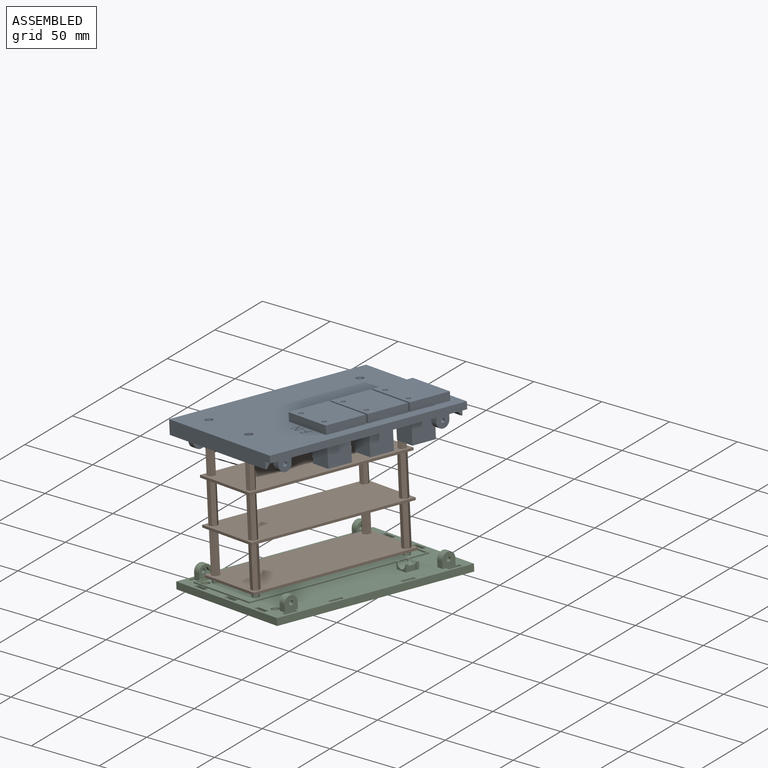
[diagram: assembled view]
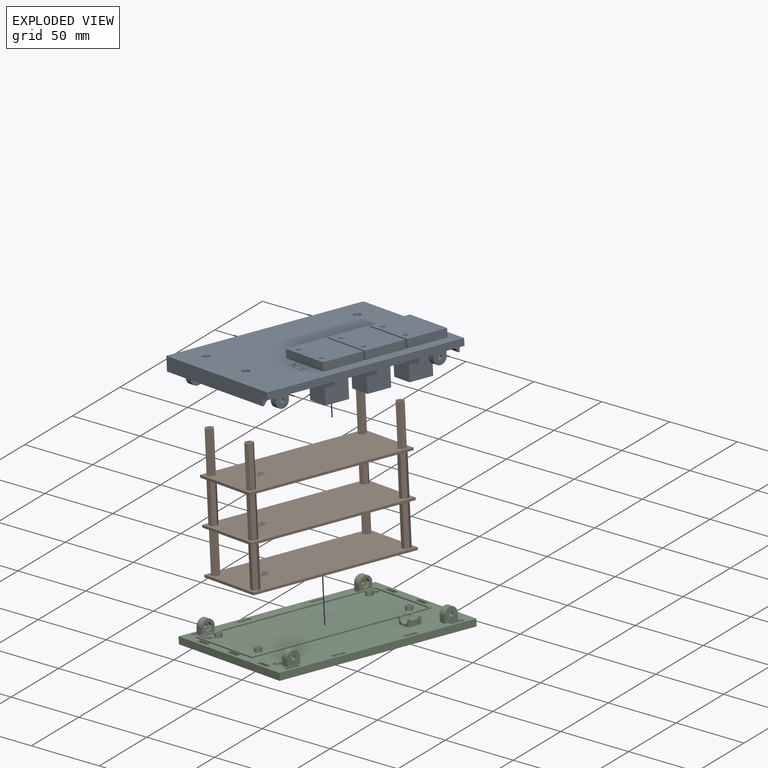
[diagram: exploded view]
GUIDED TOUR — MATED ASSEMBLY WITH SUBASSEMBLIES (Onshape document c2169f54061de33ea93a90dd, AutoMate assembly c2169f54061de33ea93a90dd_6a7d9849bef87e64bdcc8d37_39b3068de8c0a42f99096cc5_default)

This assembly has 20 component occurrences arranged in 3 top-level units: 1 individual components plus 2 subassemblies (S0, S1). The tour has two levels: first the top level, where each subassembly is treated as one rigid unit; then each subassembly is toured internally in its own section (nesting deeper than one subassembly level is flattened into its subassembly's section).

Components are labeled P0..P19 across the whole record; subassembly units are labeled S0..S1. A mate is a constraint between two units; its type names the relative motion it leaves free:
  CYLINDRICAL — leaves both rotation about and translation along the listed axis free,
  PLANAR — leaves sliding in the plane through the listed point (normal = the listed direction) and rotation about that normal free,
  SLIDER — leaves translation along the listed axis free.
Axis/direction vectors are unit vectors and 'through' points are millimeter coordinates, both in the assembly's world frame.

TOP-LEVEL MATES (between units; each subassembly's internal mates are listed in its own section)
  1. PLANAR "Planar 1": S1 <-> P5, direction (0.104, -0.076, -0.992) through (241.97, 163.51, 79.97) mm
  2. CYLINDRICAL "Cylindrical 1": S0 <-> S1, axis (0.104, -0.076, -0.992) through (194.66, 182.35, 169.48) mm
  3. PLANAR "Planar 2": S0 <-> S1, direction (0.104, -0.076, -0.992) through (197.55, 61.16, 179.07) mm
  4. SLIDER "Slider 1": S1 <-> P5, axis (0.104, -0.076, -0.992) through (207.41, 53.93, 84.76) mm

TOP-LEVEL ASSEMBLY ORDER
  1. P5 — the base component [order verified]
  2. S1 [order verified]
  3. S0 [order verified]
(S1 verified with a relaxed clearance tolerance: the source model stores slight part interference there.)
Order-tag legend:
  [order verified] — this step's position reverses a verified removal order: the component was checked to insert without passing through the ones already placed.

Of the 20 component occurrences, 20 carry the full construction recipe — the FeatureScript program that regenerates the part's solid from scratch; the rest are supplied as boundary geometry only. Each toured unit is shown spotlighted twice — assembled, then exploded with a leader line back to its socket (green = recipe-attached component, orange = geometry-only, blue = subassembly unit; the rest desaturated gray).
NOTE — document 2 of 3 of this assembly tour. The two overview renders and the header above are repeated from document 1; the component sections below continue where the previous document stopped.
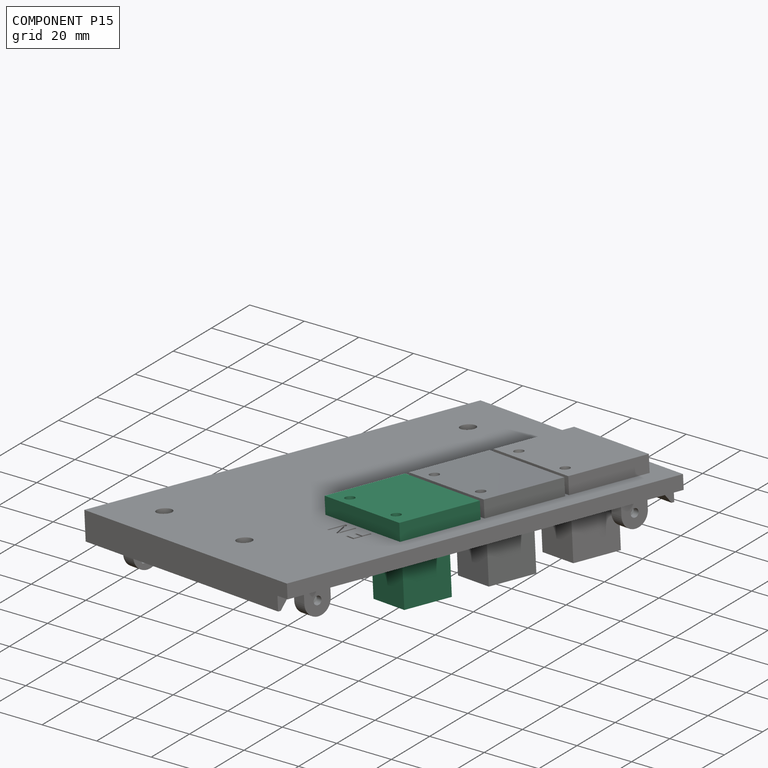
[diagram: component P15 — assembled]
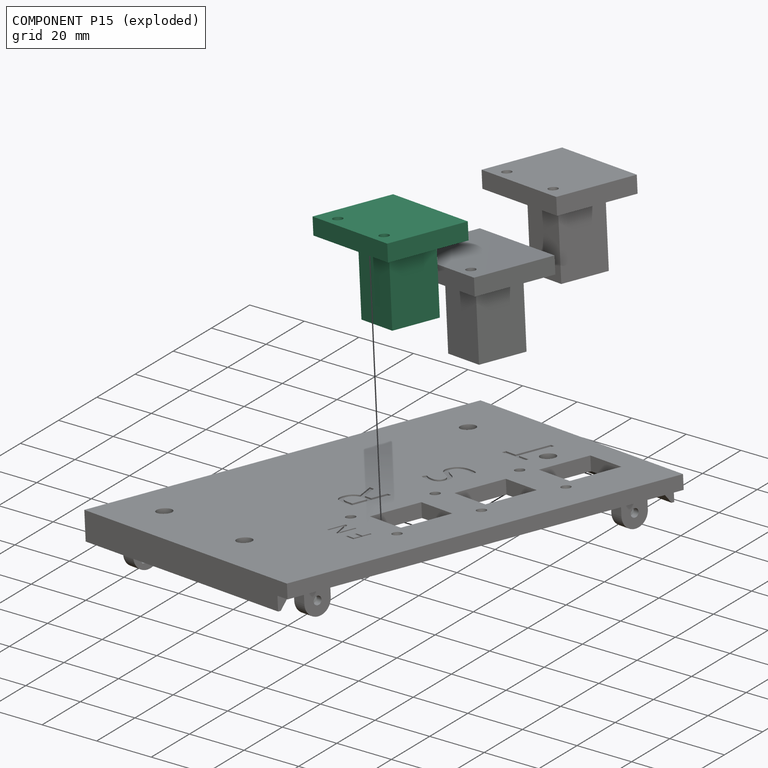
[diagram: component P15 — exploded]
COMPONENT P15 — same part as P2 (CADFS 00139065); its construction recipe is shown at P2.
Held by: PLANAR mate "Planar 3" to P0.
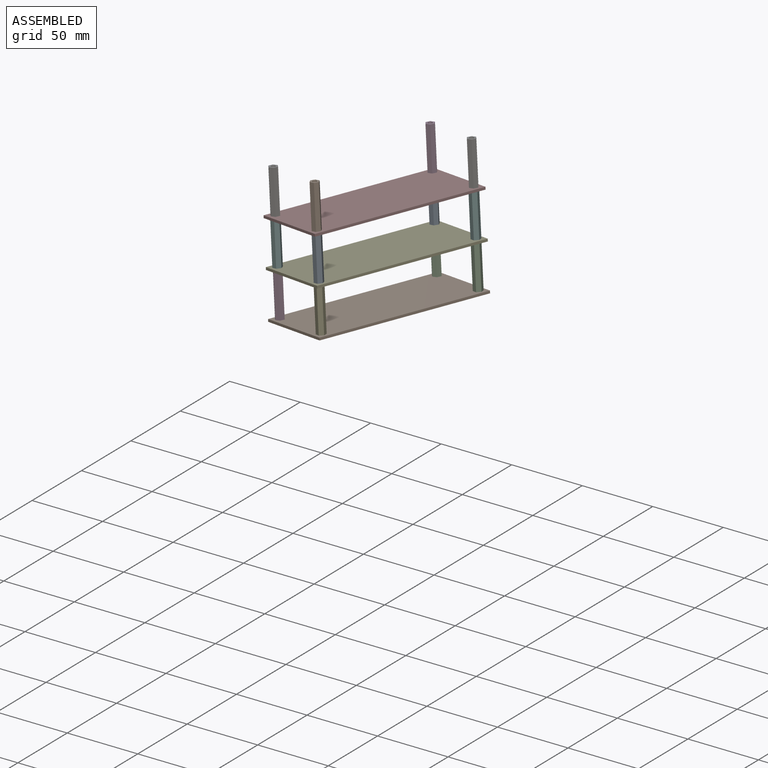
[diagram: subassembly S1 — assembled view]
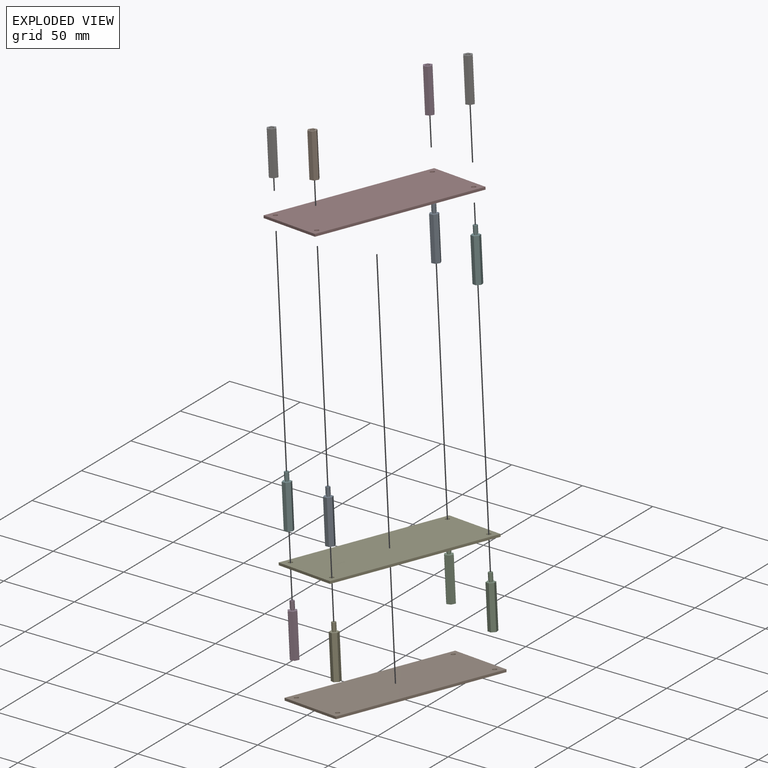
[diagram: subassembly S1 — exploded view]
SUBASSEMBLY S1 TOUR — 15 components, shown here in isolation at its own camera.

INTERNAL MATES
  1. PLANAR "Planar 9": P9 <-> P17, direction (0.104, -0.076, -0.992) through (166.49, 68.07, 113.08) mm
  2. PLANAR "Planar 5": P17 <-> P4, direction (0.104, -0.076, -0.992) through (238.69, 165.92, 111.41) mm
  3. PLANAR "Planar 14": P13 <-> P11, direction (0.104, -0.076, -0.992) through (200.66, 58.88, 149.32) mm
  4. PLANAR "Planar 6": P18 <-> P17, direction (0.104, -0.076, -0.992) through (238.51, 166.05, 113.09) mm
  5. PLANAR "Planar 2": P16 <-> P3, direction (0.104, -0.076, -0.992) through (169.78, 65.66, 81.65) mm
  6. PLANAR "Planar 13": P10 <-> P11, direction (0.104, -0.076, -0.992) through (163.21, 70.49, 144.52) mm
  7. PLANAR "Planar 8": P12 <-> P17, direction (0.104, -0.076, -0.992) through (203.94, 56.47, 117.89) mm
  8. PLANAR "Planar 10": P11 <-> P18, direction (0.104, -0.076, -0.992) through (235.40, 168.33, 142.84) mm
  9. PLANAR "Planar 3": P4 <-> P3, direction (0.104, -0.076, -0.992) through (241.80, 163.64, 81.66) mm
  10. PLANAR "Planar 4": P14 <-> P3, direction (0.104, -0.076, -0.992) through (204.34, 175.24, 76.85) mm
  11. PLANAR "Planar 7": P1 <-> P17, direction (0.104, -0.076, -0.992) through (201.06, 177.65, 108.29) mm
  12. PLANAR "Planar 1": P8 <-> P3, direction (0.104, -0.076, -0.992) through (207.23, 54.06, 86.45) mm
  13. PLANAR "Planar 12": P6 <-> P11, direction (0.104, -0.076, -0.992) through (197.77, 180.06, 139.73) mm
  14. PLANAR "Planar 11": P19 <-> P11, direction (0.104, -0.076, -0.992) through (235.22, 168.46, 144.53) mm

ASSEMBLY ORDER (within the subassembly)
  1. P11 — the base component [order heuristic]
  2. P6 — core [order heuristic]
  3. P13 — core [order heuristic]
  4. P18 — core [order heuristic]
  5. P19 — core [order heuristic]
  6. P17 — core [order heuristic]
  7. P1 — core [order heuristic]
  8. P4 — core [order heuristic]
  9. P12 — core [order heuristic]
  10. P8 — core [order heuristic]
  11. P14 — core [order heuristic]
  12. P16 [order verified]
  13. P9 [order verified]
  14. P10 [order verified]
  15. P3 [order verified]
(P9, P10, P16 verified with a relaxed clearance tolerance: the source model stores slight part interference there.)
Order-tag legend:
  [order verified] — this step's position reverses a verified removal order: the component was checked to insert without passing through the ones already placed.
  [order heuristic] — the first 11 components form the assembly's core: parts whose collision-free extraction could not be verified, listed in mate-graph order.
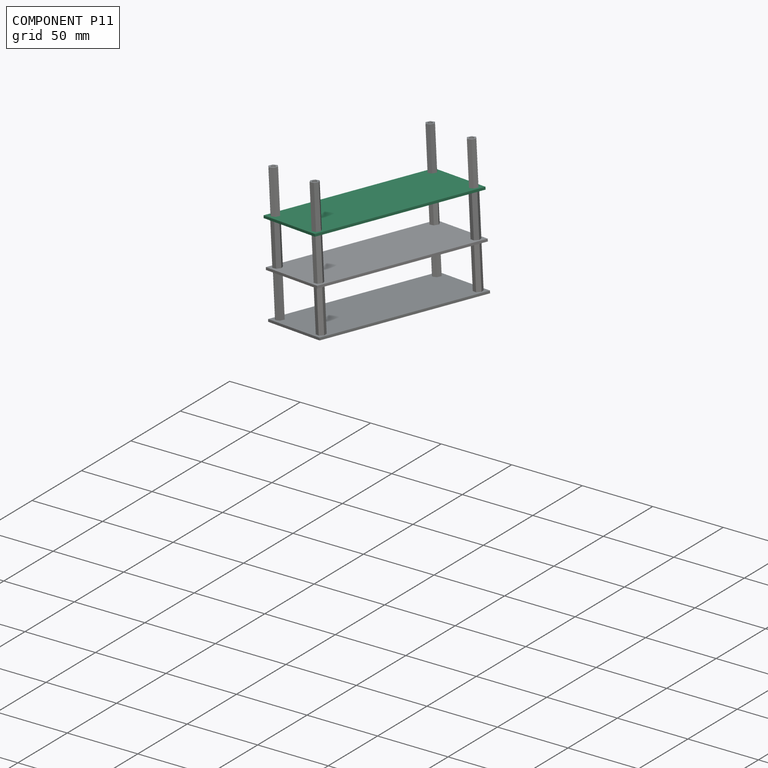
[diagram: component P11 — assembled]
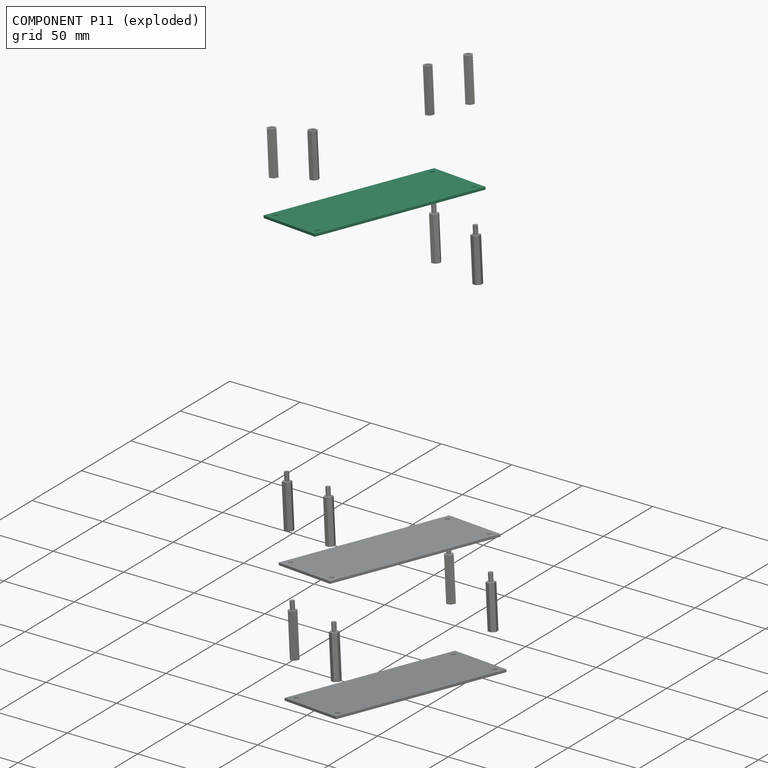
[diagram: component P11 — exploded]
COMPONENT P11 — same part as P3 (CADFS 00136846); its construction recipe is shown at P3.
Held by: PLANAR mate "Planar 14" to P13; PLANAR mate "Planar 13" to P10; PLANAR mate "Planar 10" to P18; PLANAR mate "Planar 12" to P6; PLANAR mate "Planar 11" to P19.
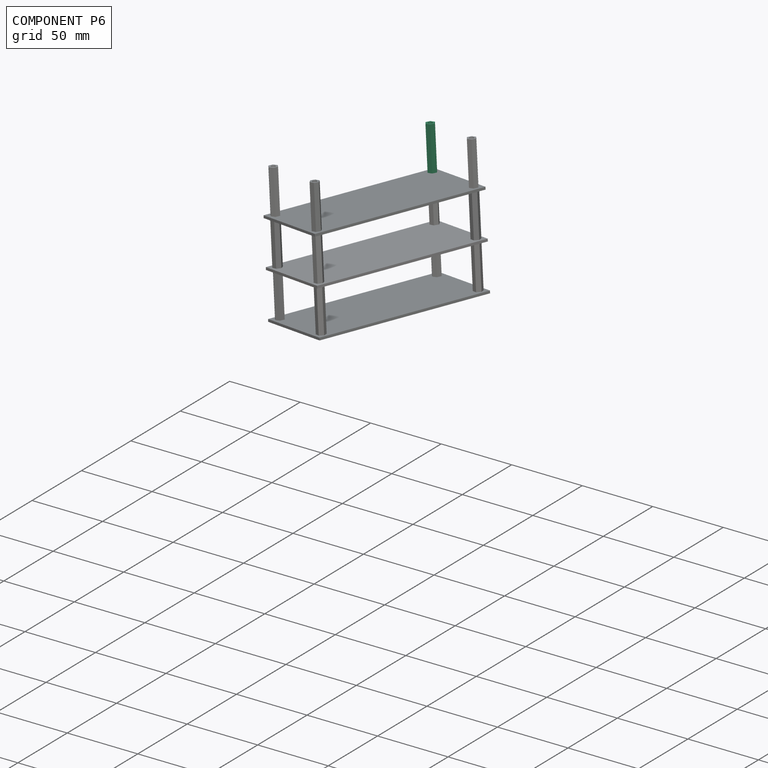
[diagram: component P6 — assembled]
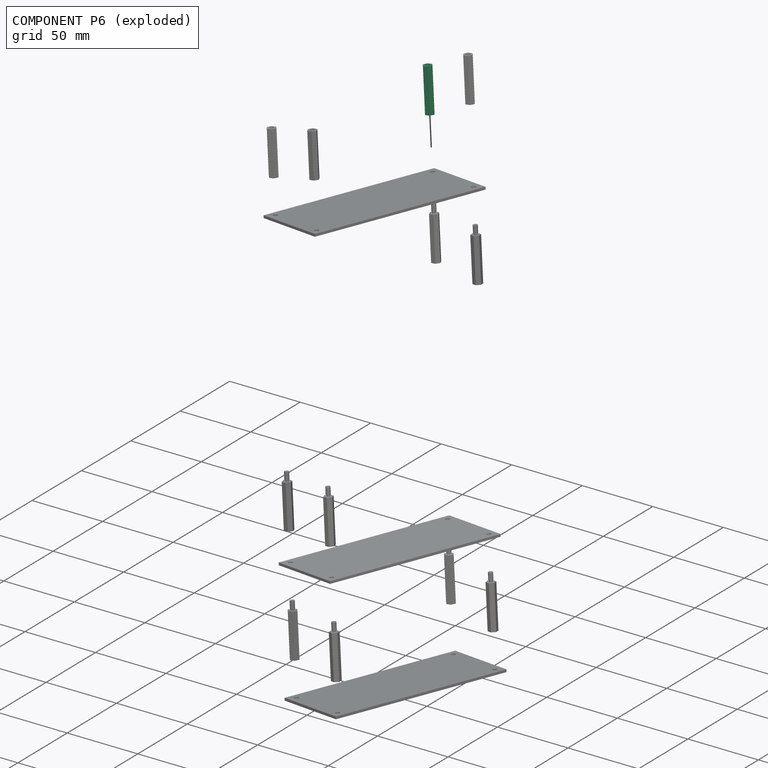
[diagram: component P6 — exploded]
COMPONENT P6 — recipe-attached (CADFS 00137561, mesh-verified: the recipe's output STEP matches this component's geometry to below the mesh-comparison resolution (tessellation chordal tolerance ~0.0467 mm)).
Held by: PLANAR mate "Planar 12" to P11.
Construction recipe (FeatureScript — the CAD program that rebuilds this solid; sketch coordinates are in the units given by the * unit suffixes, e.g. mm):

FeatureScript 1511;
import(path : "onshape/std/geometry.fs", version : "1511.0");
import(path : "onshape/std/common.fs", version : "1511.0");
const mm = millimeter;
const VERTEX = EntityType.VERTEX;
const EDGE = EntityType.EDGE;
const FACE = EntityType.FACE;
const BODY = EntityType.BODY;
function v(x, y){return vector(x, y);}
function OD(order){return orderDisambiguation(order);}
function OSD(set){return originalSetDisambiguation(set);}
function TD(topology){return topologyDisambiguation(topology);}
function TDD(query){return trueDependencyDisambiguation(query);}
function sQuery(a, b, c) {return sketchEntityQuery(a, b, c);}

annotation { "Feature Type Name" : "Feature", "Feature Type Description" : "" }
export const myFeature = defineFeature(function(context is Context, id is Id, definition is map)
    precondition{}
    {
        {
            var Q0;
            Q0=qCreatedBy(makeId("Top.planeOp"),FACE);
            var sketch = newSketch(context, id + "F0", { "sketchPlane" : qUnion([Q0])});
            skCircle(sketch, "E0.cCircle", {"center": v(0, 0) * mm, "radius": 2.75 * mm, "construction": true});
            skLineSegment(sketch, "E0.0", {"start": v(2.75, 1.59) * mm, "end": v(2.75, -1.59) * mm});
            skLineSegment(sketch, "E0.1", {"start": v(2.75, -1.59) * mm, "end": v(0, -3.18) * mm});
            skLineSegment(sketch, "E0.2", {"start": v(0, -3.18) * mm, "end": v(-2.75, -1.59) * mm});
            skLineSegment(sketch, "E0.3", {"start": v(-2.75, -1.59) * mm, "end": v(-2.75, 1.59) * mm});
            skLineSegment(sketch, "E0.4", {"start": v(-2.75, 1.59) * mm, "end": v(0, 3.18) * mm});
            skLineSegment(sketch, "E0.5", {"start": v(0, 3.18) * mm, "end": v(2.75, 1.59) * mm});
            skPoint(sketch, "E0.0.midPoint", {"position": v(2.75, 0) * mm});
            skCircle(sketch, "E1", {"center": v(0, 0) * mm, "radius": 1.5 * mm});
            skSolve(sketch);
        }
        {
            var Q0;
            Q0 = qSketchRegion(id + "F0", true);
            extrude(context, id + "F1", {"entities" : qUnion([Q0]), "depth" : 30 * mm});
        }
    });
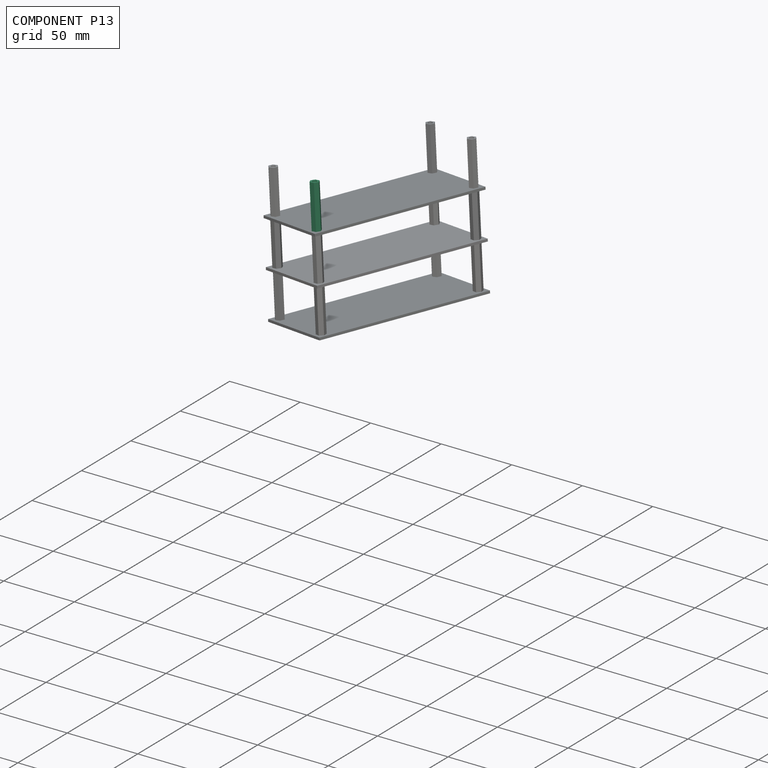
[diagram: component P13 — assembled]
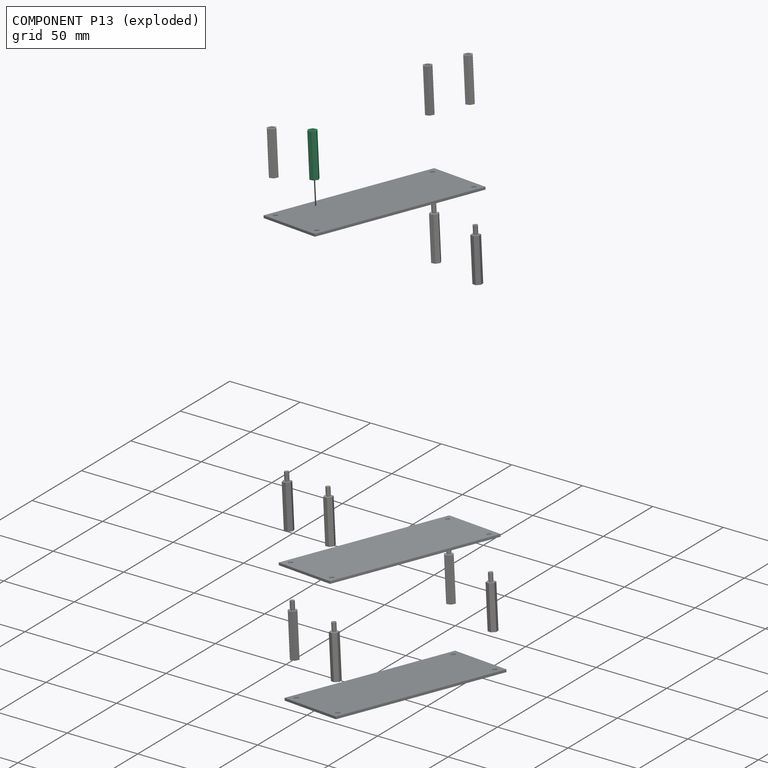
[diagram: component P13 — exploded]
COMPONENT P13 — same part as P6 (CADFS 00137561); its construction recipe is shown at P6.
Held by: PLANAR mate "Planar 14" to P11.
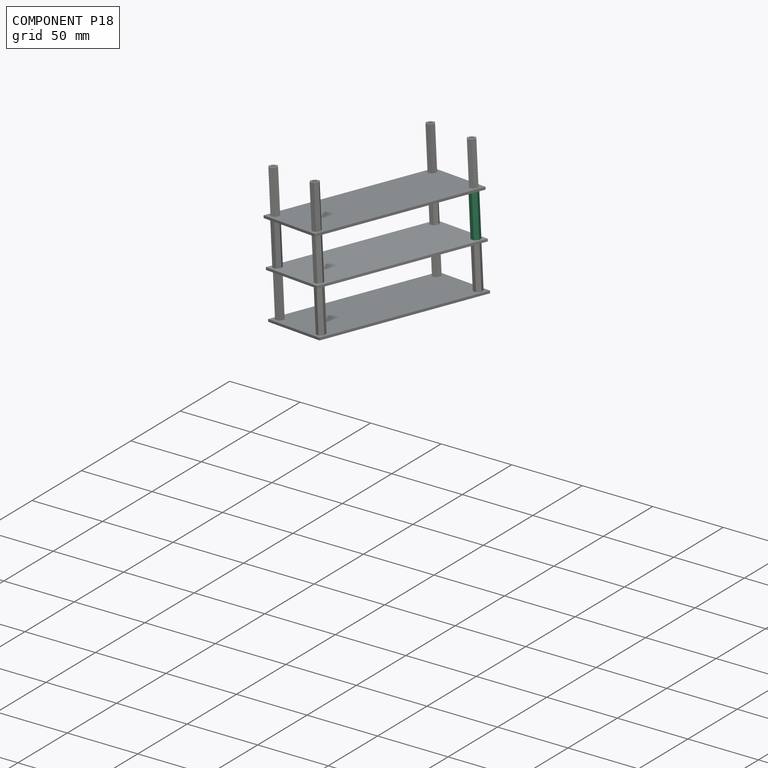
[diagram: component P18 — assembled]
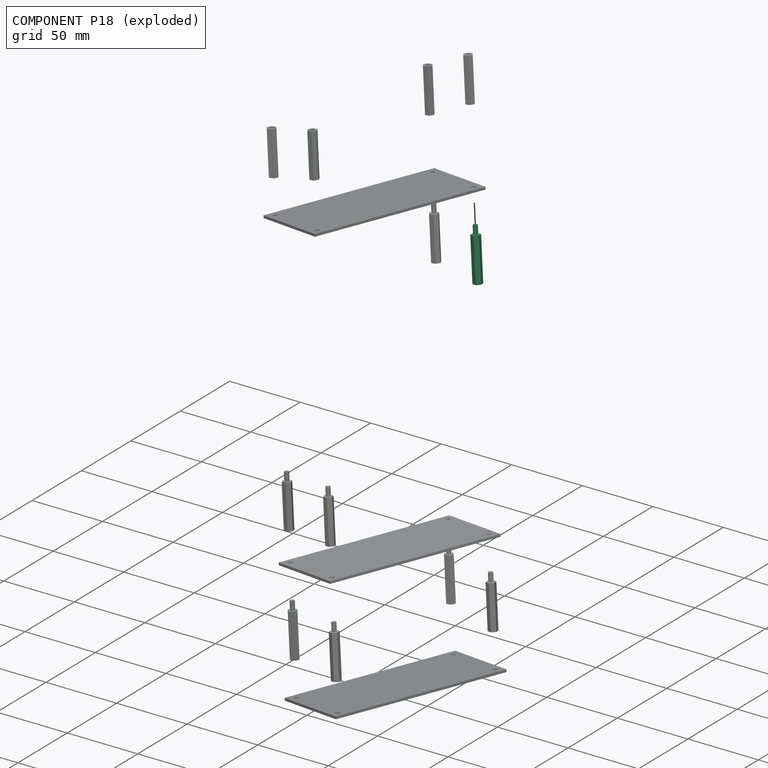
[diagram: component P18 — exploded]
COMPONENT P18 — same part as P1 (CADFS 00136910); its construction recipe is shown at P1.
Held by: PLANAR mate "Planar 6" to P17; PLANAR mate "Planar 10" to P11.
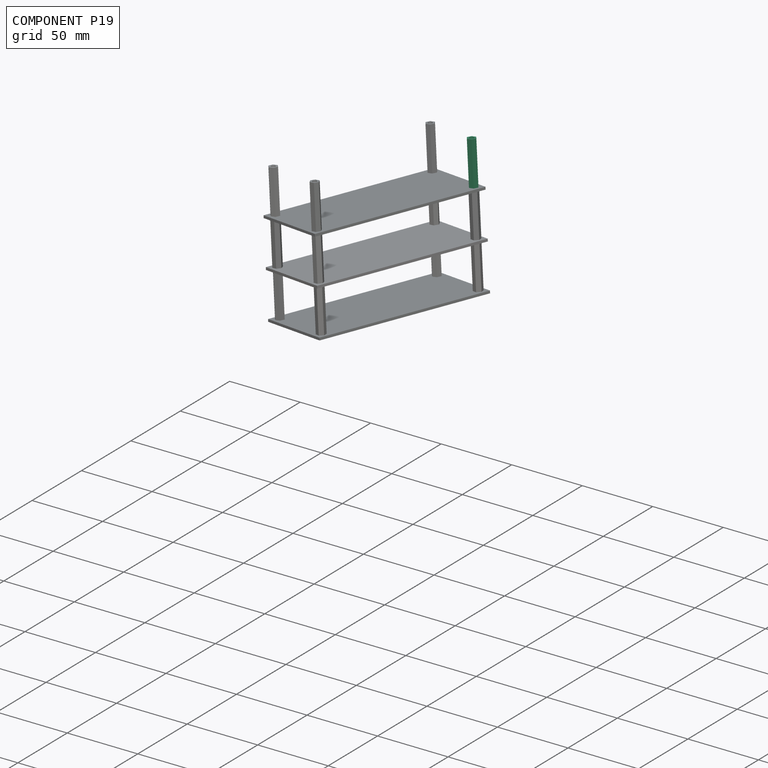
[diagram: component P19 — assembled]
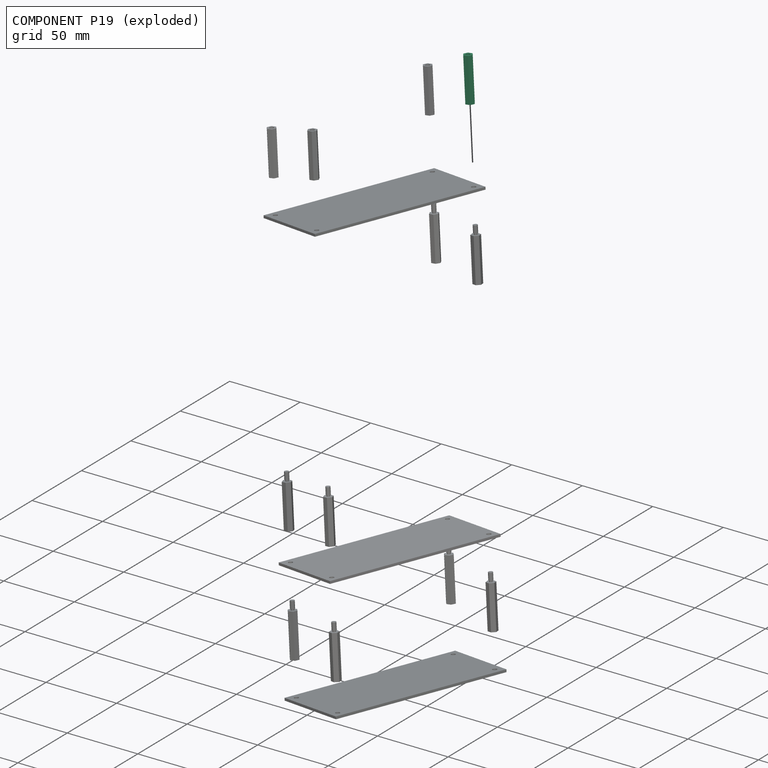
[diagram: component P19 — exploded]
COMPONENT P19 — same part as P6 (CADFS 00137561); its construction recipe is shown at P6.
Held by: PLANAR mate "Planar 11" to P11.
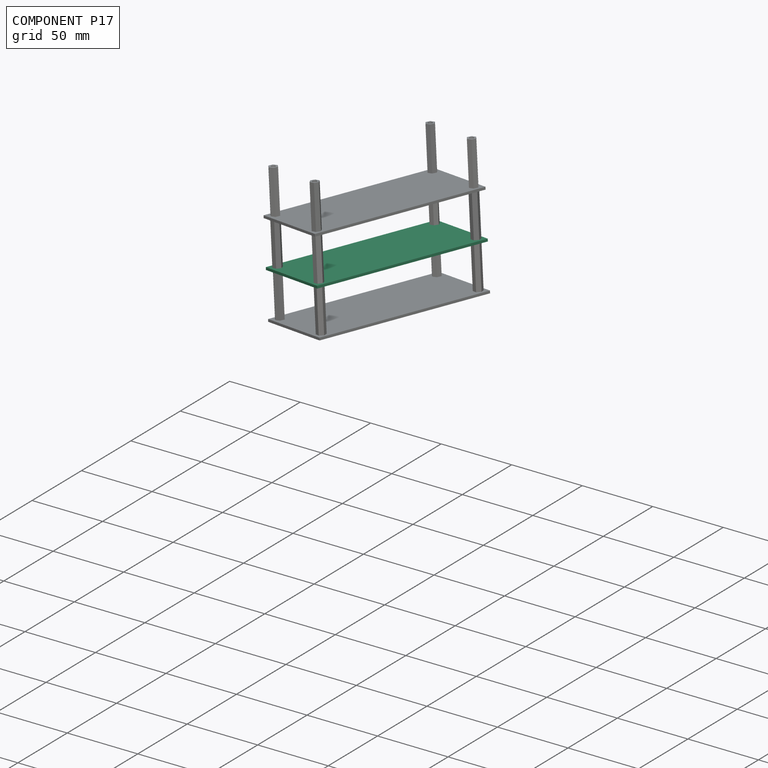
[diagram: component P17 — assembled]
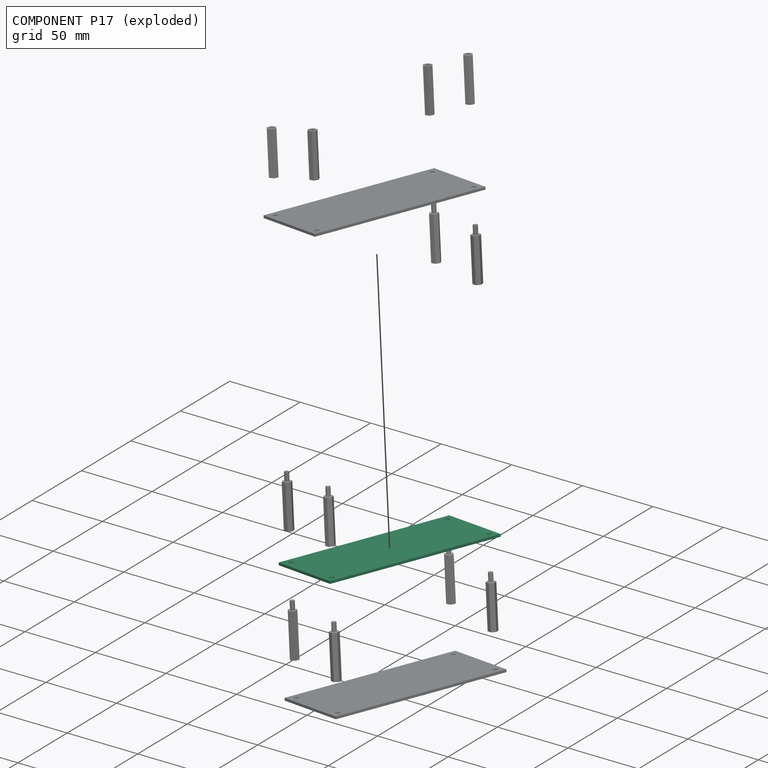
[diagram: component P17 — exploded]
COMPONENT P17 — same part as P3 (CADFS 00136846); its construction recipe is shown at P3.
Held by: PLANAR mate "Planar 9" to P9; PLANAR mate "Planar 5" to P4; PLANAR mate "Planar 6" to P18; PLANAR mate "Planar 8" to P12; PLANAR mate "Planar 7" to P1.
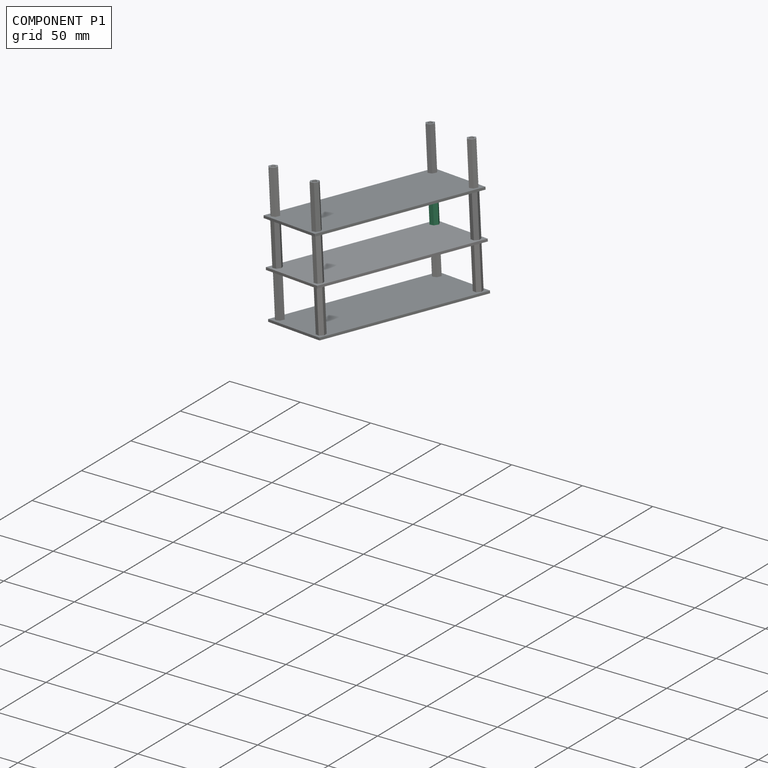
[diagram: component P1 — assembled]
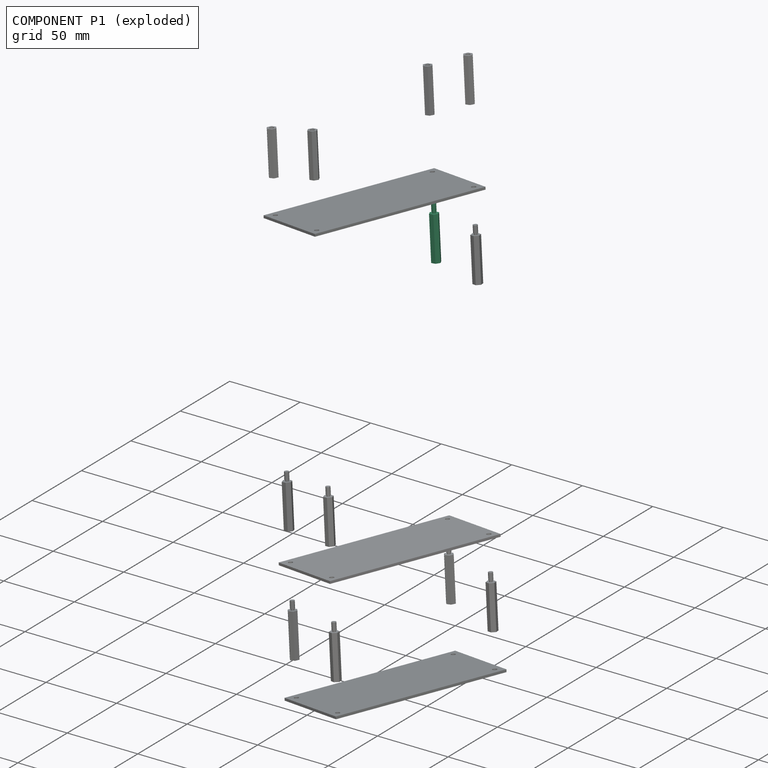
[diagram: component P1 — exploded]
COMPONENT P1 — recipe-attached (CADFS 00136910, mesh-verified: the recipe's output STEP matches this component's geometry to below the mesh-comparison resolution (tessellation chordal tolerance ~0.0555 mm)).
Held by: PLANAR mate "Planar 7" to P17.
Construction recipe (FeatureScript — the CAD program that rebuilds this solid; sketch coordinates are in the units given by the * unit suffixes, e.g. mm):

FeatureScript 1511;
import(path : "onshape/std/geometry.fs", version : "1511.0");
import(path : "onshape/std/common.fs", version : "1511.0");
const mm = millimeter;
const VERTEX = EntityType.VERTEX;
const EDGE = EntityType.EDGE;
const FACE = EntityType.FACE;
const BODY = EntityType.BODY;
function v(x, y){return vector(x, y);}
function OD(order){return orderDisambiguation(order);}
function OSD(set){return originalSetDisambiguation(set);}
function TD(topology){return topologyDisambiguation(topology);}
function TDD(query){return trueDependencyDisambiguation(query);}
function sQuery(a, b, c) {return sketchEntityQuery(a, b, c);}

annotation { "Feature Type Name" : "Feature", "Feature Type Description" : "" }
export const myFeature = defineFeature(function(context is Context, id is Id, definition is map)
    precondition{}
    {
        {
            var Q0;
            Q0=qCreatedBy(makeId("Top.planeOp"),FACE);
            var sketch = newSketch(context, id + "F0", { "sketchPlane" : qUnion([Q0])});
            skCircle(sketch, "E0.cCircle", {"center": v(0, 0) * mm, "radius": 2.75 * mm, "construction": true});
            skLineSegment(sketch, "E0.0", {"start": v(-1.59, 2.75) * mm, "end": v(1.59, 2.75) * mm});
            skLineSegment(sketch, "E0.1", {"start": v(1.59, 2.75) * mm, "end": v(3.18, 0) * mm});
            skLineSegment(sketch, "E0.2", {"start": v(3.18, 0) * mm, "end": v(1.59, -2.75) * mm});
            skLineSegment(sketch, "E0.3", {"start": v(1.59, -2.75) * mm, "end": v(-1.59, -2.75) * mm});
            skLineSegment(sketch, "E0.4", {"start": v(-1.59, -2.75) * mm, "end": v(-3.18, 0) * mm});
            skLineSegment(sketch, "E0.5", {"start": v(-3.18, 0) * mm, "end": v(-1.59, 2.75) * mm});
            skPoint(sketch, "E0.0.midPoint", {"position": v(0, 2.75) * mm});
            skSolve(sketch);
        }
        {
            var Q0;
            Q0=makeQuery(id+"F0.imprint","IMPRINT",FACE,{"disambiguationData":[TD([[makeQuery(id+"F0.imprint","IMPRINT",EDGE,{"derivedFrom":sQuery(id+"F0.wireOp",EDGE,"E0.0")}),-1.0]])]});
            extrude(context, id + "F1", {"entities" : qUnion([Q0]), "depth" : 30 * mm});
        }
        {
            var Q0;
            Q0=makeQuery(id+"F1.opExtrude","CAP_FACE",FACE,{"disambiguationData":[OSD([sQuery(id+"F0.wireOp",EDGE,"E0.0"),sQuery(id+"F0.wireOp",EDGE,"E0.1"),sQuery(id+"F0.wireOp",EDGE,"E0.2"),sQuery(id+"F0.wireOp",EDGE,"E0.3"),sQuery(id+"F0.wireOp",EDGE,"E0.4"),sQuery(id+"F0.wireOp",EDGE,"E0.5")])],"isStart":false});
            var sketch = newSketch(context, id + "F2", { "sketchPlane" : qUnion([Q0])});
            skCircle(sketch, "E1", {"center": v(0, 0) * mm, "radius": 1.1 * mm});
            skSolve(sketch);
        }
        {
            var Q0;
            Q0=makeQuery(id+"F2.imprint","IMPRINT",FACE,{"disambiguationData":[TD([[makeQuery(id+"F2.imprint","IMPRINT",EDGE,{"derivedFrom":sQuery(id+"F2.wireOp",EDGE,"E1")}),1.0]])]});
            extrude(context, id + "F3", {"entities" : qUnion([Q0]), "operationType" : NewBodyOperationType.ADD, "depth" : 1 * mm});
        }
        {
            var Q0;
            Q0=makeQuery(id+"F3.opExtrude","CAP_FACE",FACE,{"disambiguationData":[OSD([sQuery(id+"F2.wireOp",EDGE,"E1")])],"isStart":false});
            var sketch = newSketch(context, id + "F4", { "sketchPlane" : qUnion([Q0])});
            skCircle(sketch, "E2", {"center": v(0, 0) * mm, "radius": 1.5 * mm});
            skSolve(sketch);
        }
        {
            var Q0;
            Q0 = qSketchRegion(id + "F4", true);
            extrude(context, id + "F5", {"entities" : qUnion([Q0]), "operationType" : NewBodyOperationType.ADD, "depth" : 5 * mm});
        }
        {
            var Q0;
            Q0=qCreatedBy(makeId("Top.planeOp"),FACE);
            var sketch = newSketch(context, id + "F6", { "sketchPlane" : qUnion([Q0])});
            skCircle(sketch, "E3", {"center": v(0, 0) * mm, "radius": 1.5 * mm});
            skSolve(sketch);
        }
        {
            var Q0;
            Q0=makeQuery(id+"F6.imprint","IMPRINT",FACE,{"disambiguationData":[TD([[makeQuery(id+"F6.imprint","IMPRINT",EDGE,{"derivedFrom":sQuery(id+"F6.wireOp",EDGE,"E3")}),1.0]])]});
            var Q1;
            Q1=sQuery(id+"F6.wireOp",EDGE,"E3");
            extrude(context, id + "F7", {"entities" : qUnion([Q0]), "operationType" : NewBodyOperationType.REMOVE, "surfaceEntities" : qUnion([Q1]), "depth" : 7 * mm});
        }
    });
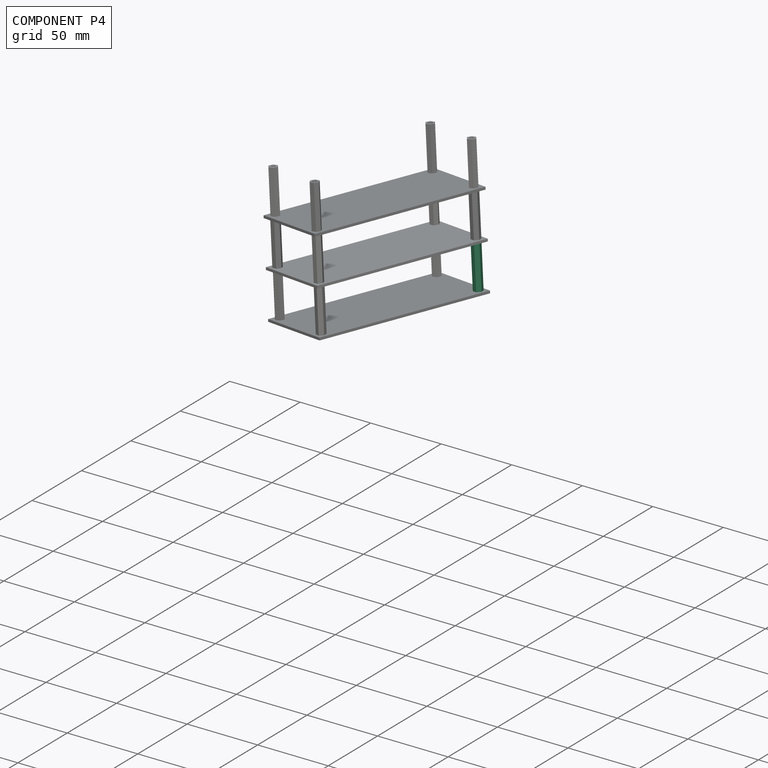
[diagram: component P4 — assembled]
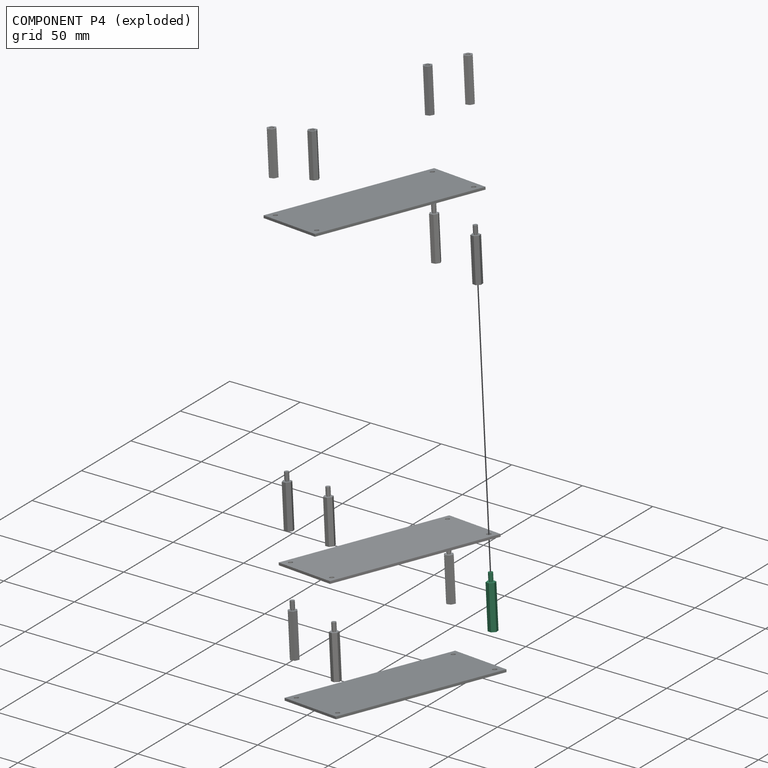
[diagram: component P4 — exploded]
COMPONENT P4 — same part as P1 (CADFS 00136910); its construction recipe is shown at P1.
Held by: PLANAR mate "Planar 5" to P17; PLANAR mate "Planar 3" to P3.
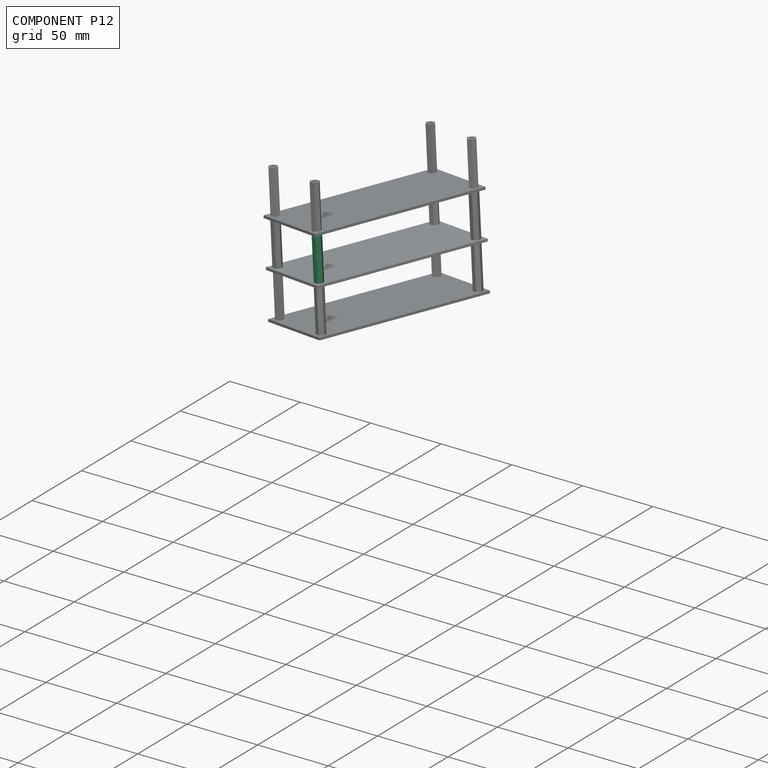
[diagram: component P12 — assembled]
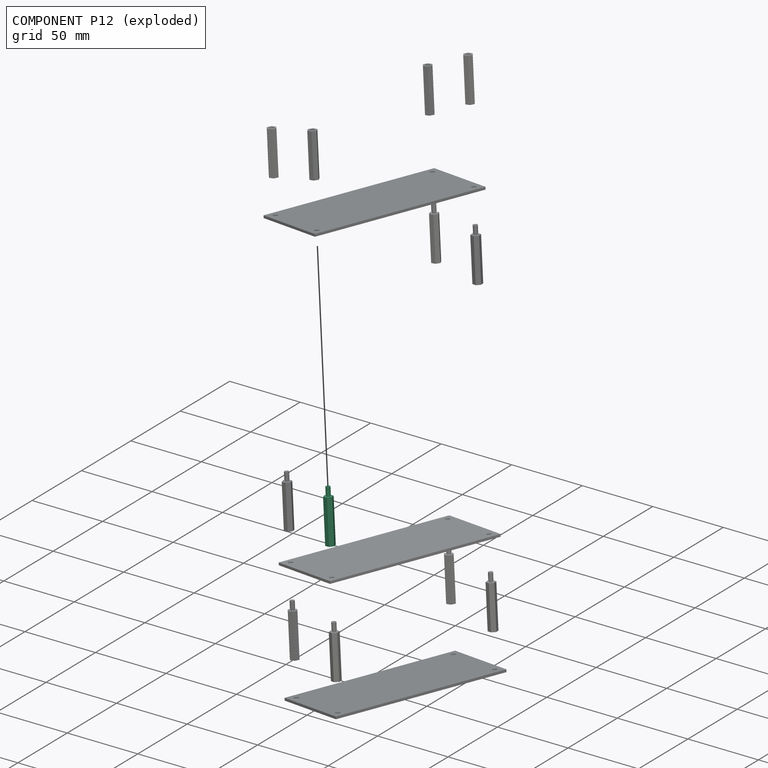
[diagram: component P12 — exploded]
COMPONENT P12 — same part as P1 (CADFS 00136910); its construction recipe is shown at P1.
Held by: PLANAR mate "Planar 8" to P17.
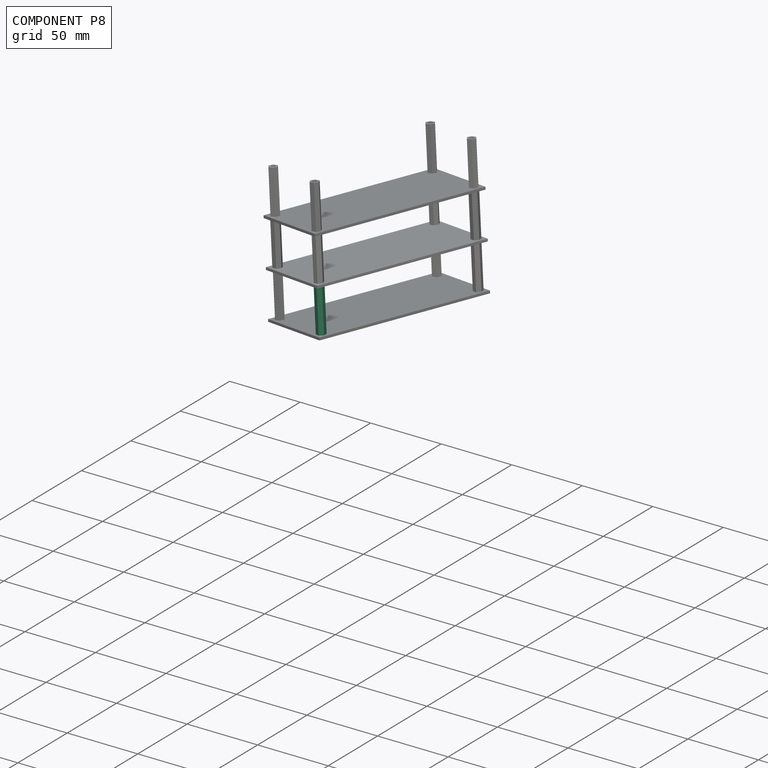
[diagram: component P8 — assembled]
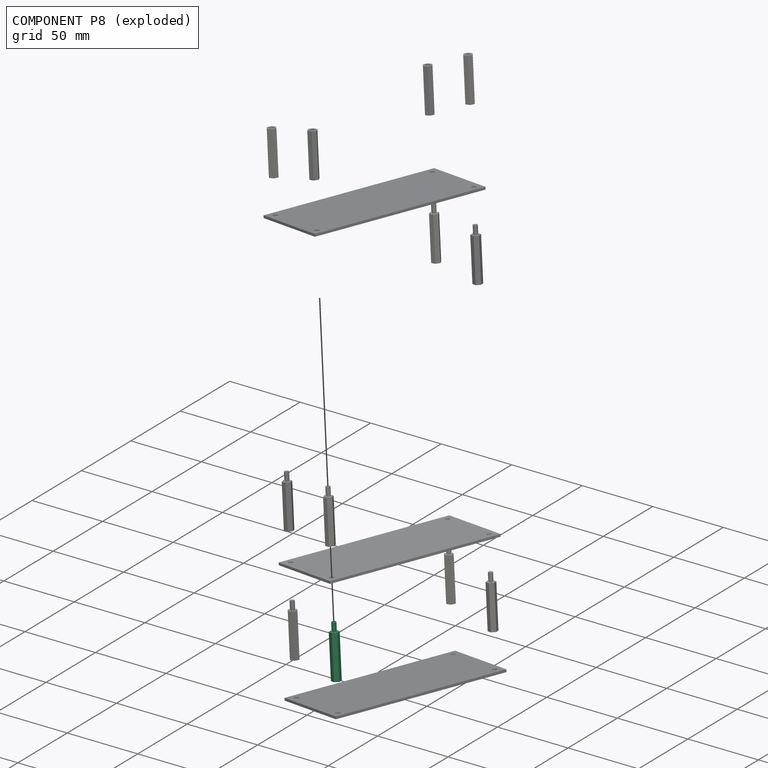
[diagram: component P8 — exploded]
COMPONENT P8 — same part as P1 (CADFS 00136910); its construction recipe is shown at P1.
Held by: PLANAR mate "Planar 1" to P3.
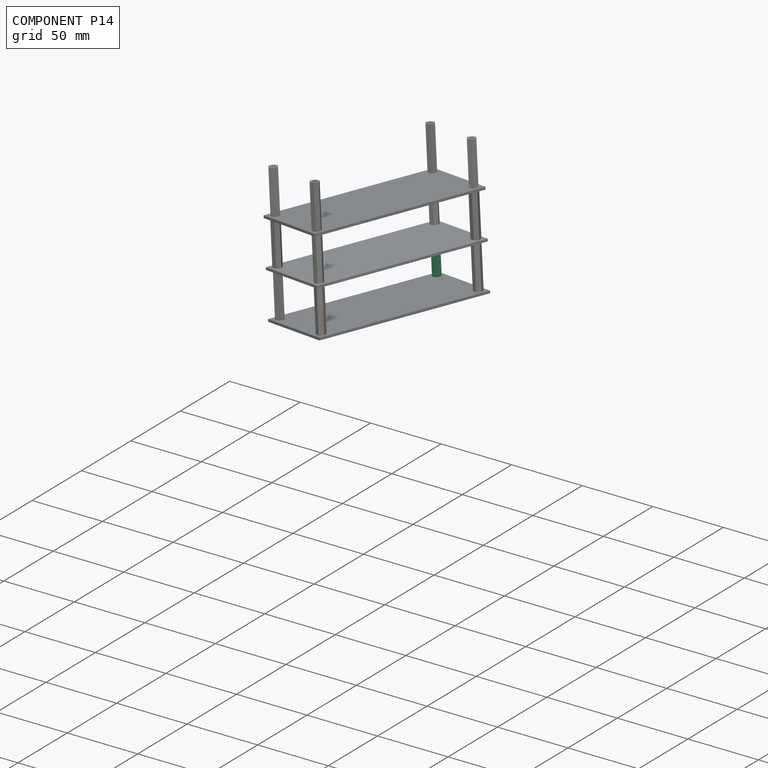
[diagram: component P14 — assembled]
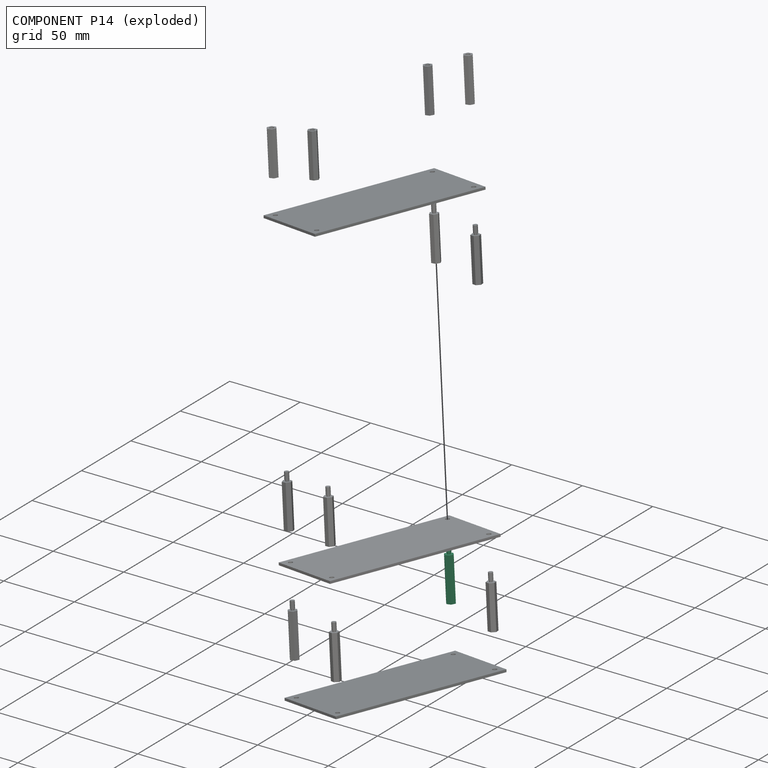
[diagram: component P14 — exploded]
COMPONENT P14 — same part as P1 (CADFS 00136910); its construction recipe is shown at P1.
Held by: PLANAR mate "Planar 4" to P3.
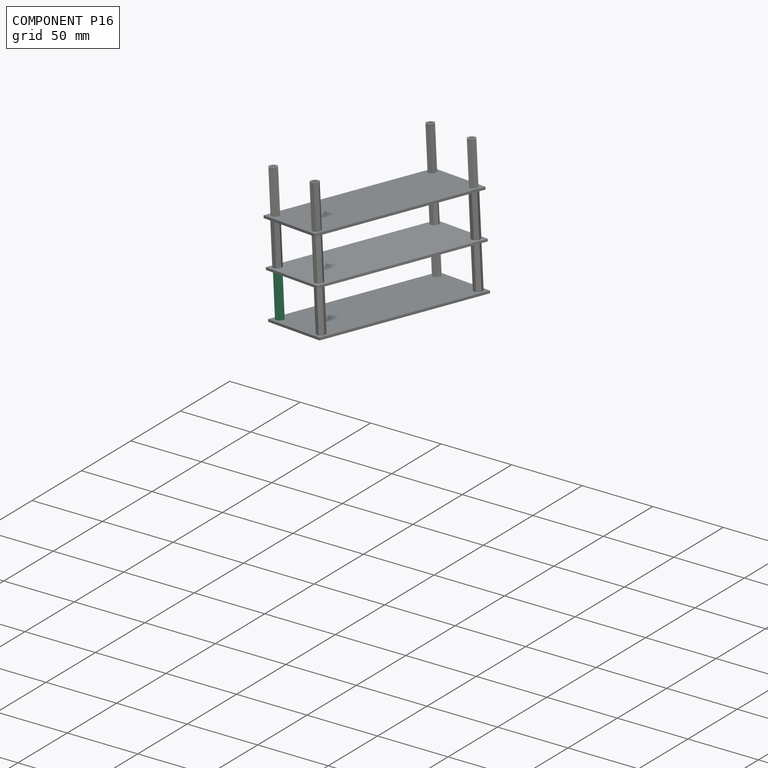
[diagram: component P16 — assembled]
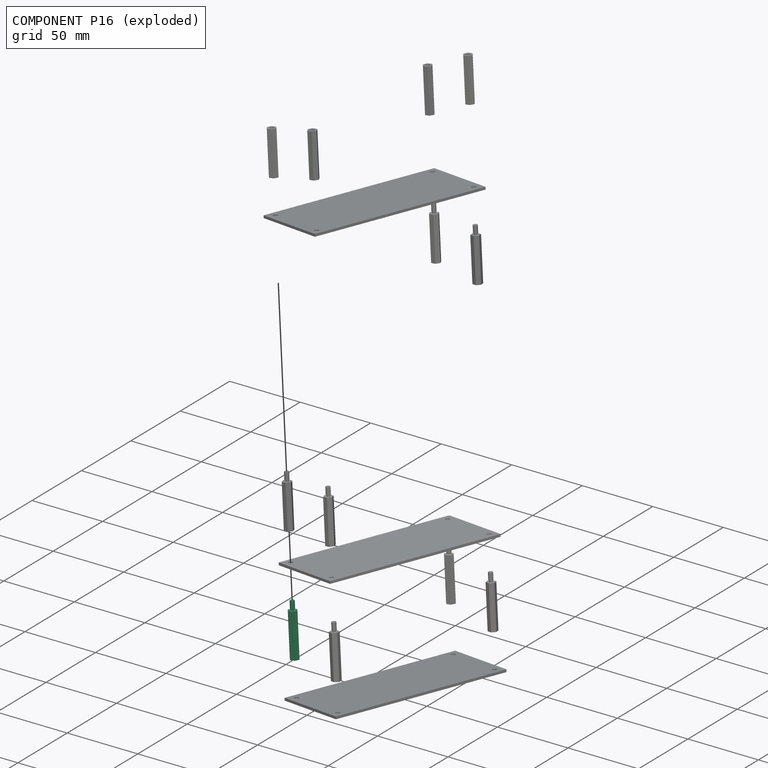
[diagram: component P16 — exploded]
COMPONENT P16 — same part as P1 (CADFS 00136910); its construction recipe is shown at P1.
Held by: PLANAR mate "Planar 2" to P3.
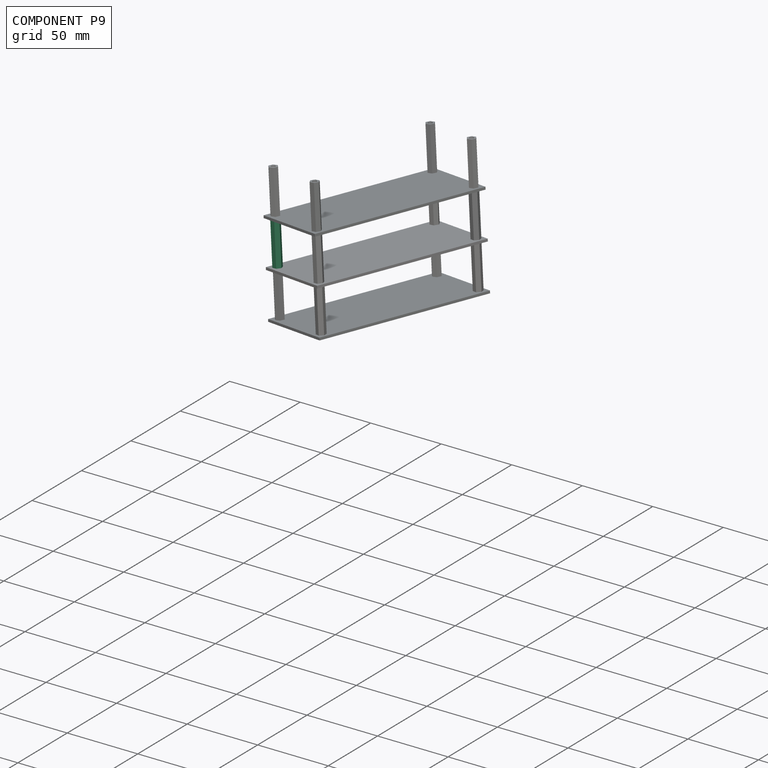
[diagram: component P9 — assembled]
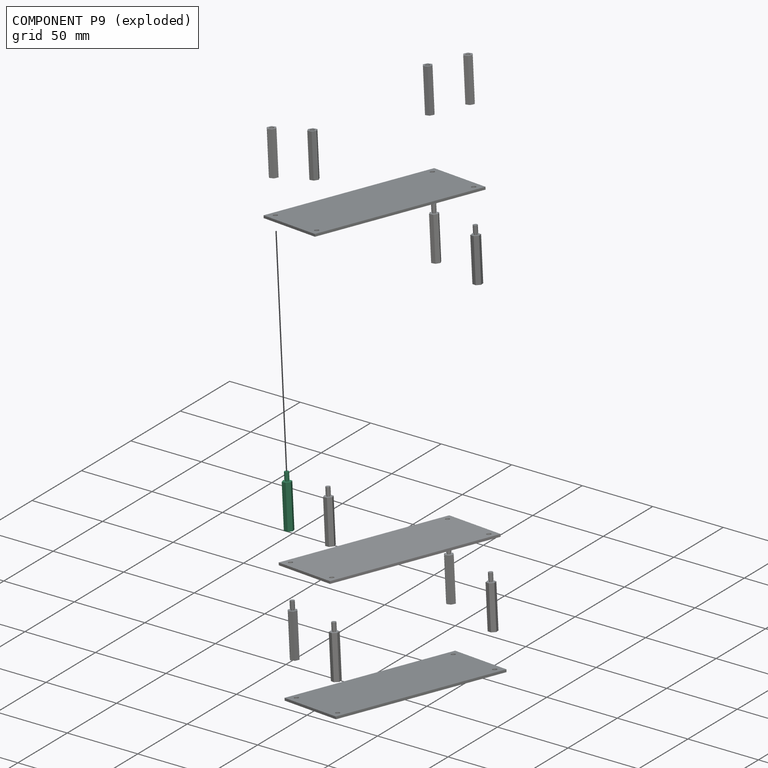
[diagram: component P9 — exploded]
COMPONENT P9 — same part as P1 (CADFS 00136910); its construction recipe is shown at P1.
Held by: PLANAR mate "Planar 9" to P17.
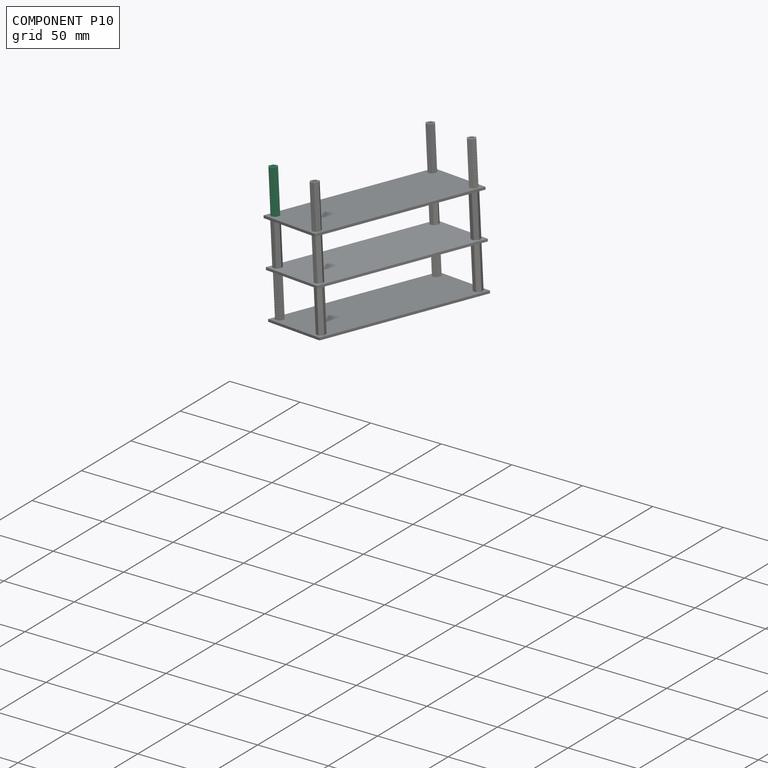
[diagram: component P10 — assembled]
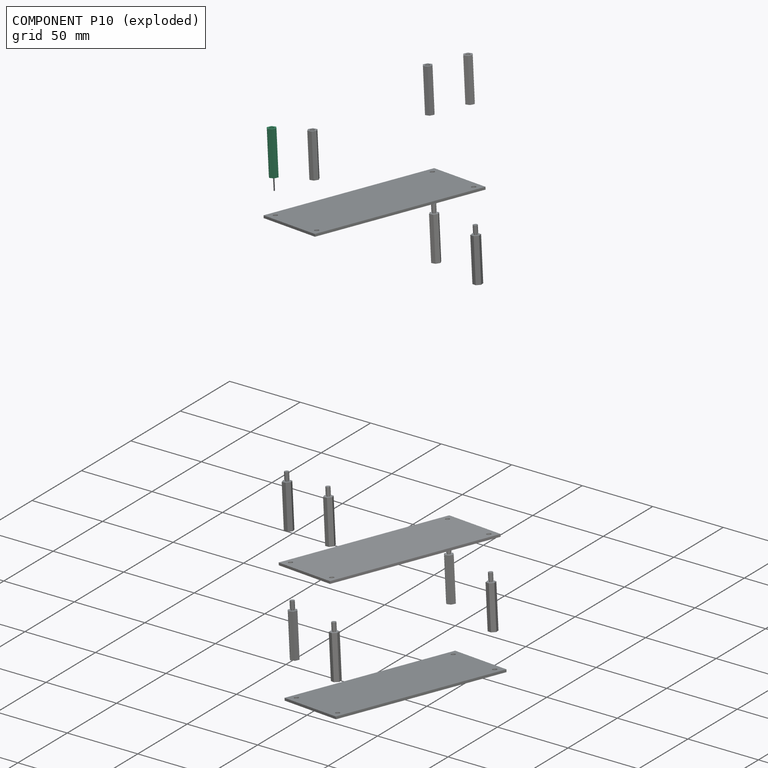
[diagram: component P10 — exploded]
COMPONENT P10 — same part as P6 (CADFS 00137561); its construction recipe is shown at P6.
Held by: PLANAR mate "Planar 13" to P11.
